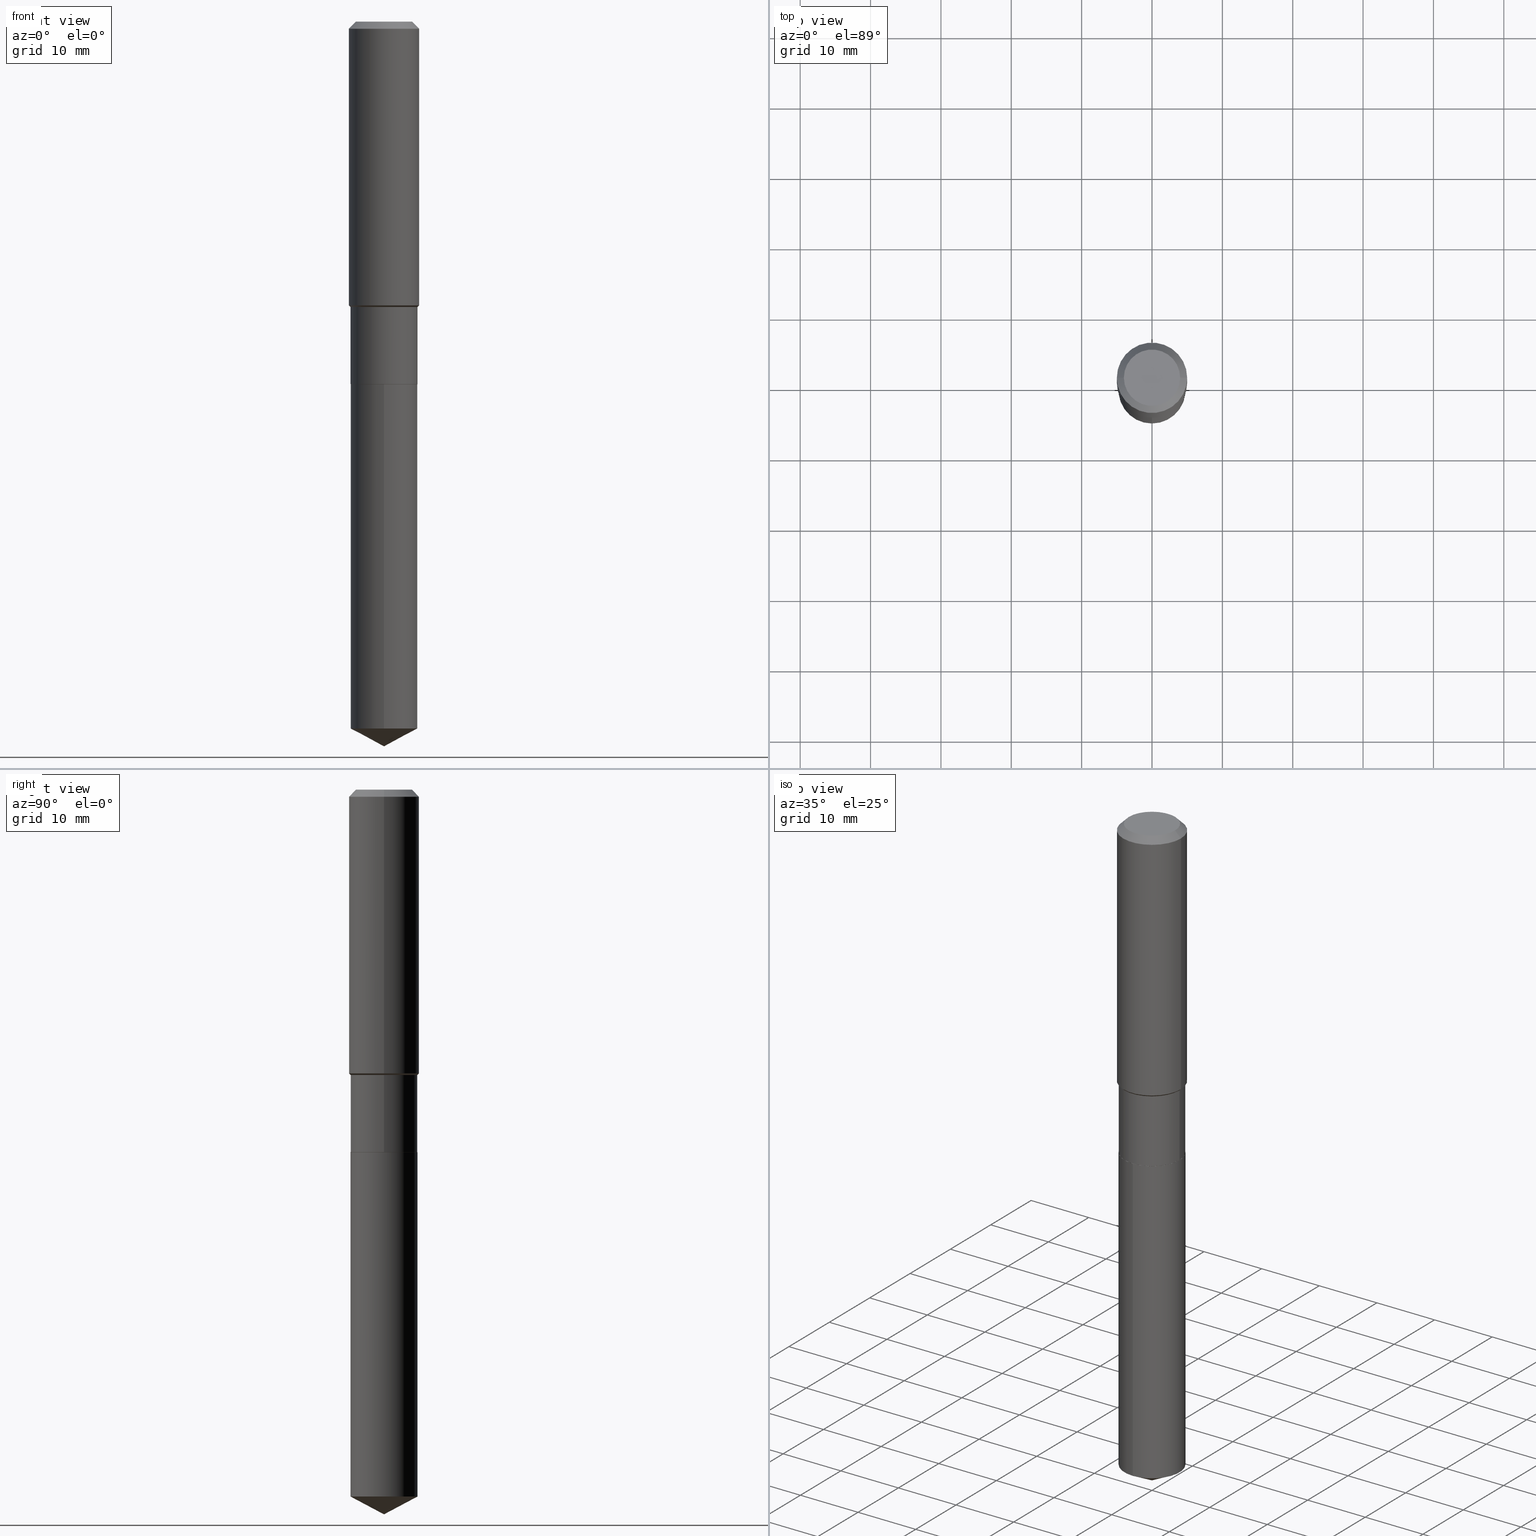
[diagram: canonical four-view strip — front | top / right | iso, engineering-drawing reading convention]
A machine part, canonical four-view strip (front | top / right | iso — engineering-drawing reading convention). The complete STEP part file that produces these views, byte-faithful:
ISO-10303-21;
HEADER;
FILE_DESCRIPTION (( 'STEP AP203' ),
    '1' );
FILE_NAME ('54821.STEP',
    '2024-04-24T15:58:58',
    ( '' ),
    ( '' ),
    'SwSTEP 2.0',
    'SolidWorks 2023',
    '' );
FILE_SCHEMA (( 'CONFIG_CONTROL_DESIGN' ));
ENDSEC;

DATA;
#1 = CARTESIAN_POINT ( 'NONE',  ( 4.959410738943456624E-29, -7.080724155173898521E-15, -2.027999999999999581 ) ) ;
#2 = DIRECTION ( 'NONE',  ( -2.445468806185136597E-29, 3.491481338843145583E-15, 1.000000000000000000 ) ) ;
#3 = DIRECTION ( 'NONE',  ( -6.982962677686265133E-15, -1.000000000000000000, 3.541896320645539569E-15 ) ) ;
#4 = CARTESIAN_POINT ( 'NONE',  ( 4.959410738943456063E-29, -7.080724155173897732E-15, -2.027999999999999581 ) ) ;
#5 = CONICAL_SURFACE ( 'NONE', #347, 0.1968500000000000250, 0.7853981633974447263 ) ;
#6 = EDGE_CURVE ( 'NONE', #209, #385, #403, .T. ) ;
#7 = FACE_OUTER_BOUND ( 'NONE', #217, .T. ) ;
#8 = CARTESIAN_POINT ( 'NONE',  ( -1.309305502066125507E-15, -0.1875000000000070777, -2.027999999999999137 ) ) ;
#9 = APPROVAL_DATE_TIME ( #359, #200 ) ;
#10 = CALENDAR_DATE ( 2024, 24, 4 ) ;
#11 = CIRCLE ( 'NONE', #473, 0.1968500000000002192 ) ;
#12 = CIRCLE ( 'NONE', #118, 0.1875000000000000278 ) ;
#13 = CARTESIAN_POINT ( 'NONE',  ( 2.890591265467325299E-29, -1.004339139108359101E-14, -2.027999999999999581 ) ) ;
#14 = DATE_TIME_ROLE ( 'creation_date' ) ;
#15 = FACE_OUTER_BOUND ( 'NONE', #459, .T. ) ;
#16 = CARTESIAN_POINT ( 'NONE',  ( 1.332267629550284681E-15, 0.1874999999999929501, -2.028000000000000025 ) ) ;
#17 = CARTESIAN_POINT ( 'NONE',  ( 3.904680042835807186E-29, -5.574848253730850378E-15, -1.596700000000000008 ) ) ;
#18 = PERSON_AND_ORGANIZATION ( #98, #489 ) ;
#19 = DIRECTION ( 'NONE',  ( -6.982962677686265922E-15, -1.000000000000000000, 2.913971193241880372E-15 ) ) ;
#20 = ADVANCED_FACE ( 'NONE', ( #68 ), #329, .T. ) ;
#21 = AXIS2_PLACEMENT_3D ( 'NONE', #164, #320, #472 ) ;
#22 = AXIS2_PLACEMENT_3D ( 'NONE', #456, #2, #117 ) ;
#23 = ORIENTED_EDGE ( 'NONE', *, *, #53, .F. ) ;
#24 = CARTESIAN_POINT ( 'NONE',  ( 0.000000000000000000, 0.000000000000000000, 0.000000000000000000 ) ) ;
#25 = CARTESIAN_POINT ( 'NONE',  ( 4.959410738943456624E-29, -7.080724155173898521E-15, -2.027999999999999581 ) ) ;
#26 = ORIENTED_EDGE ( 'NONE', *, *, #219, .T. ) ;
#27 = EDGE_CURVE ( 'NONE', #205, #251, #147, .T. ) ;
#28 = CARTESIAN_POINT ( 'NONE',  ( 0.000000000000000000, 0.000000000000000000, 0.000000000000000000 ) ) ;
#29 = ORIENTED_EDGE ( 'NONE', *, *, #61, .T. ) ;
#30 = EDGE_CURVE ( 'NONE', #337, #446, #36, .T. ) ;
#31 = ORIENTED_EDGE ( 'NONE', *, *, #74, .T. ) ;
#32 = VECTOR ( 'NONE', #220, 39.37007874015748143 ) ;
#33 = EDGE_LOOP ( 'NONE', ( #371, #128 ) ) ;
#34 = EDGE_CURVE ( 'NONE', #251, #441, #191, .T. ) ;
#35 = VERTEX_POINT ( 'NONE', #224 ) ;
#36 = CIRCLE ( 'NONE', #425, 0.1875000000000000278 ) ;
#37 = APPROVAL_PERSON_ORGANIZATION ( #161, #278, #431 ) ;
#38 = LINE ( 'NONE', #115, #264 ) ;
#39 = DIRECTION ( 'NONE',  ( 1.000000000000000000, -6.982962677686266711E-15, 4.876176775795935793E-29 ) ) ;
#40 = EDGE_CURVE ( 'NONE', #441, #251, #233, .T. ) ;
#41 = DIRECTION ( 'NONE',  ( 1.000000000000000000, -6.982962677686265922E-15, 4.876223630392693006E-29 ) ) ;
#42 = ADVANCED_FACE ( 'NONE', ( #102 ), #160, .F. ) ;
#43 = AXIS2_PLACEMENT_3D ( 'NONE', #169, #91, #396 ) ;
#44 = CARTESIAN_POINT ( 'NONE',  ( 9.672428586867749277E-29, -1.381007963808280120E-14, -3.955304481563473473 ) ) ;
#45 = VECTOR ( 'NONE', #154, 39.37007874015748143 ) ;
#46 = LINE ( 'NONE', #8, #45 ) ;
#47 = ORIENTED_EDGE ( 'NONE', *, *, #214, .T. ) ;
#48 = APPLICATION_PROTOCOL_DEFINITION ( 'international standard', 'config_control_design', 1994, #274 ) ;
#49 = DIRECTION ( 'NONE',  ( 1.000000000000000000, -6.982962677686264344E-15, 0.000000000000000000 ) ) ;
#50 = ADVANCED_FACE ( 'NONE', ( #364 ), #326, .T. ) ;
#51 = APPROVAL_DATE_TIME ( #395, #278 ) ;
#52 = PLANE ( 'NONE',  #71 ) ;
#53 = EDGE_CURVE ( 'NONE', #407, #441, #286, .T. ) ;
#54 = CC_DESIGN_PERSON_AND_ORGANIZATION_ASSIGNMENT ( #81, #352, ( #230 ) ) ;
#55 = DIRECTION ( 'NONE',  ( -2.445468806185136597E-29, 3.491481338843145583E-15, 1.000000000000000000 ) ) ;
#56 = ORIENTED_EDGE ( 'NONE', *, *, #245, .T. ) ;
#57 = LOCAL_TIME ( 11, 58, 58.00000000000000000, #129 ) ;
#58 = VERTEX_POINT ( 'NONE', #369 ) ;
#59 = CARTESIAN_POINT ( 'NONE',  ( 4.959410738943456063E-29, -7.080724155173897732E-15, -2.027999999999999581 ) ) ;
#60 = VERTEX_POINT ( 'NONE', #392 ) ;
#61 = EDGE_CURVE ( 'NONE', #205, #407, #11, .T. ) ;
#62 = VERTEX_POINT ( 'NONE', #277 ) ;
#63 = CC_DESIGN_DATE_AND_TIME_ASSIGNMENT ( #80, #313, ( #127 ) ) ;
#64 = DIRECTION ( 'NONE',  ( 1.000000000000000000, -6.982962677686265922E-15, 4.876223630392693006E-29 ) ) ;
#65 = EDGE_LOOP ( 'NONE', ( #439, #138, #26, #229 ) ) ;
#66 = CIRCLE ( 'NONE', #382, 0.1875000000000000278 ) ;
#67 = ORIENTED_EDGE ( 'NONE', *, *, #270, .F. ) ;
#68 = FACE_OUTER_BOUND ( 'NONE', #436, .T. ) ;
#69 = CARTESIAN_POINT ( 'NONE',  ( -0.1968500000000000250, 1.237136582792286225E-15, -0.03937000000000029365 ) ) ;
#70 = DIRECTION ( 'NONE',  ( 1.000000000000000000, -6.982962677686265922E-15, 0.000000000000000000 ) ) ;
#71 = AXIS2_PLACEMENT_3D ( 'NONE', #13, #246, #317 ) ;
#72 = VECTOR ( 'NONE', #342, 39.37007874015748854 ) ;
#73 = DIRECTION ( 'NONE',  ( 1.000000000000000000, -6.982962677686264344E-15, 0.000000000000000000 ) ) ;
#74 = EDGE_CURVE ( 'NONE', #242, #485, #199, .T. ) ;
#75 = CARTESIAN_POINT ( 'NONE',  ( 3.904680042835807186E-29, -5.574848253730850378E-15, -1.596700000000000008 ) ) ;
#76 = CARTESIAN_POINT ( 'NONE',  ( 9.627810689950954155E-31, -1.374596203102556547E-16, -0.03937000000000029365 ) ) ;
#77 = CARTESIAN_POINT ( 'NONE',  ( 0.1968500000000000250, -1.487948651171581601E-15, -0.03937000000000029365 ) ) ;
#78 = CARTESIAN_POINT ( 'NONE',  ( 9.627810689950954155E-31, -1.374596203102556547E-16, -0.03937000000000029365 ) ) ;
#79 = CONICAL_SURFACE ( 'NONE', #330, 0.1869999999999999996, 0.7853981633972775267 ) ;
#80 = DATE_AND_TIME ( #243, #216 ) ;
#81 = PERSON_AND_ORGANIZATION ( #98, #489 ) ;
#82 = CC_DESIGN_DATE_AND_TIME_ASSIGNMENT ( #158, #14, ( #230 ) ) ;
#83 = APPLICATION_PROTOCOL_DEFINITION ( 'international standard', 'config_control_design', 1994, #367 ) ;
#84 = DIRECTION ( 'NONE',  ( 1.000000000000000000, -6.982962677686266711E-15, 4.876176775795935793E-29 ) ) ;
#85 = AXIS2_PLACEMENT_3D ( 'NONE', #361, #430, #84 ) ;
#86 = ADVANCED_FACE ( 'NONE', ( #15 ), #116, .T. ) ;
#87 = DATE_AND_TIME ( #163, #57 ) ;
#88 = DIRECTION ( 'NONE',  ( -6.982962677686265922E-15, -1.000000000000000000, 2.913971193241880372E-15 ) ) ;
#89 = ORIENTED_EDGE ( 'NONE', *, *, #245, .F. ) ;
#90 = LENGTH_MEASURE_WITH_UNIT ( LENGTH_MEASURE( 0.02539999999999999897 ), #203 );
#91 = DIRECTION ( 'NONE',  ( -2.445393498022162713E-29, 3.491589184418798595E-15, 1.000000000000000000 ) ) ;
#92 = ORIENTED_EDGE ( 'NONE', *, *, #429, .F. ) ;
#93 = DIRECTION ( 'NONE',  ( -2.445468806185136877E-29, 3.491481338843145188E-15, 1.000000000000000000 ) ) ;
#94 = AXIS2_PLACEMENT_3D ( 'NONE', #454, #107, #332 ) ;
#95 = ORIENTED_EDGE ( 'NONE', *, *, #111, .F. ) ;
#96 = LINE ( 'NONE', #69, #366 ) ;
#97 = ORIENTED_EDGE ( 'NONE', *, *, #269, .F. ) ;
#98 = PERSON ( 'UNSPECIFIED', 'UNSPECIFIED', 'UNSPECIFIED', ('UNSPECIFIED'), ('UNSPECIFIED'), ('UNSPECIFIED') ) ;
#99 = EDGE_LOOP ( 'NONE', ( #327, #287 ) ) ;
#100 = DIRECTION ( 'NONE',  ( -2.445468806185136597E-29, 3.491481338843145583E-15, 1.000000000000000000 ) ) ;
#101 = AXIS2_PLACEMENT_3D ( 'NONE', #76, #297, #450 ) ;
#102 = FACE_OUTER_BOUND ( 'NONE', #173, .T. ) ;
#103 = VECTOR ( 'NONE', #303, 39.37007874015748143 ) ;
#104 = ADVANCED_FACE ( 'NONE', ( #120 ), #52, .F. ) ;
#105 = DIRECTION ( 'NONE',  ( 0.7071067811864267805, -2.468850131080992517E-15, 0.7071067811866682540 ) ) ;
#106 = ORIENTED_EDGE ( 'NONE', *, *, #27, .F. ) ;
#107 = DIRECTION ( 'NONE',  ( -2.445468806185136597E-29, 3.491481338843145583E-15, 1.000000000000000000 ) ) ;
#108 = CARTESIAN_POINT ( 'NONE',  ( -0.1968500000000001082, 1.398703375343757985E-15, -9.682923725166787881E-30 ) ) ;
#109 = CARTESIAN_POINT ( 'NONE',  ( 0.1968500000000000250, -1.512055823412797189E-15, -0.03937000000000029365 ) ) ;
#110 = AXIS2_PLACEMENT_3D ( 'NONE', #340, #380, #3 ) ;
#111 = EDGE_CURVE ( 'NONE', #337, #58, #358, .T. ) ;
#112 = LINE ( 'NONE', #77, #32 ) ;
#113 = CARTESIAN_POINT ( 'NONE',  ( 9.627810689950954155E-31, -1.374596203102556547E-16, -0.03937000000000029365 ) ) ;
#114 = DIRECTION ( 'NONE',  ( -0.7071067811864267805, 7.493145998869918709E-15, 0.7071067811866682540 ) ) ;
#115 = CARTESIAN_POINT ( 'NONE',  ( -0.1869999999999999996, -5.752009239302511571E-15, -2.027999999999999581 ) ) ;
#116 = CONICAL_SURFACE ( 'NONE', #43, 74.04434902938398011, 1.082104136236488934 ) ;
#117 = DIRECTION ( 'NONE',  ( 1.000000000000000000, -6.982962677686265133E-15, 0.000000000000000000 ) ) ;
#118 = AXIS2_PLACEMENT_3D ( 'NONE', #44, #149, #226 ) ;
#119 = DIRECTION ( 'NONE',  ( -6.165590087286842340E-15, -0.8829475928589273215, 0.4694715627858898066 ) ) ;
#120 = FACE_OUTER_BOUND ( 'NONE', #99, .T. ) ;
#121 = PERSON_AND_ORGANIZATION ( #98, #489 ) ;
#122 = DIRECTION ( 'NONE',  ( -2.445393498022162713E-29, 3.491589184418798595E-15, 1.000000000000000000 ) ) ;
#123 = CARTESIAN_POINT ( 'NONE',  ( -4.713871149261283817E-47, 6.730158695841841775E-33, 1.927594061857935365E-18 ) ) ;
#124 = CARTESIAN_POINT ( 'NONE',  ( 4.959410738943456063E-29, -7.080724155173897732E-15, -2.027999999999999581 ) ) ;
#125 = VECTOR ( 'NONE', #386, 39.37007874015748143 ) ;
#126 = DIRECTION ( 'NONE',  ( -1.000000000000000000, 6.982962677686265922E-15, -4.876176775795935793E-29 ) ) ;
#127 = SECURITY_CLASSIFICATION ( '', '', #468 ) ;
#128 = ORIENTED_EDGE ( 'NONE', *, *, #194, .T. ) ;
#129 = COORDINATED_UNIVERSAL_TIME_OFFSET ( 5, 0, .BEHIND. ) ;
#130 = DIRECTION ( 'NONE',  ( -2.445468806185136877E-29, 3.491481338843145188E-15, 1.000000000000000000 ) ) ;
#131 = ORIENTED_EDGE ( 'NONE', *, *, #323, .T. ) ;
#132 = EDGE_CURVE ( 'NONE', #385, #209, #488, .T. ) ;
#133 = CC_DESIGN_PERSON_AND_ORGANIZATION_ASSIGNMENT ( #394, #280, ( #249 ) ) ;
#134 = CARTESIAN_POINT ( 'NONE',  ( 0.000000000000000000, 0.000000000000000000, 0.000000000000000000 ) ) ;
#135 = AXIS2_PLACEMENT_3D ( 'NONE', #283, #435, #88 ) ;
#136 = ORIENTED_EDGE ( 'NONE', *, *, #194, .F. ) ;
#137 = DIRECTION ( 'NONE',  ( 1.000000000000000000, -6.982962677686264344E-15, 0.000000000000000000 ) ) ;
#138 = ORIENTED_EDGE ( 'NONE', *, *, #375, .F. ) ;
#139 = ADVANCED_FACE ( 'NONE', ( #314 ), #279, .F. ) ;
#140 = APPROVAL ( #357, 'UNSPECIFIED' ) ;
#141 = ORIENTED_EDGE ( 'NONE', *, *, #452, .F. ) ;
#142 = DIRECTION ( 'NONE',  ( -2.445468806185136597E-29, 3.491481338843145583E-15, 1.000000000000000000 ) ) ;
#143 = ORIENTED_EDGE ( 'NONE', *, *, #27, .T. ) ;
#144 = CIRCLE ( 'NONE', #177, 0.1875000000000000278 ) ;
#145 = ORIENTED_EDGE ( 'NONE', *, *, #170, .T. ) ;
#146 = DIRECTION ( 'NONE',  ( 2.445468806185136597E-29, -3.491481338843145583E-15, -1.000000000000000000 ) ) ;
#147 = LINE ( 'NONE', #108, #248 ) ;
#148 = ADVANCED_FACE ( 'NONE', ( #289 ), #172, .T. ) ;
#149 = DIRECTION ( 'NONE',  ( -2.445393498022162713E-29, 3.491589184418798595E-15, 1.000000000000000000 ) ) ;
#150 = DIRECTION ( 'NONE',  ( -2.445468806185136877E-29, 3.491481338843145188E-15, 1.000000000000000000 ) ) ;
#151 = CARTESIAN_POINT ( 'NONE',  ( -0.1875000000000000278, -4.994645704567475454E-15, -2.027499999999999414 ) ) ;
#152 = DIRECTION ( 'NONE',  ( 2.445468806185136597E-29, -3.491481338843145583E-15, -1.000000000000000000 ) ) ;
#153 = COORDINATED_UNIVERSAL_TIME_OFFSET ( 5, 0, .BEHIND. ) ;
#154 = DIRECTION ( 'NONE',  ( -2.445393498022162713E-29, 3.491589184418798595E-15, 1.000000000000000000 ) ) ;
#155 = ORIENTED_EDGE ( 'NONE', *, *, #111, .T. ) ;
#156 = CLOSED_SHELL ( 'NONE', ( #50, #20, #86, #447, #139 ) ) ;
#157 = APPROVAL_ROLE ( '' ) ;
#158 = DATE_AND_TIME ( #10, #465 ) ;
#159 = AXIS2_PLACEMENT_3D ( 'NONE', #301, #142, #137 ) ;
#160 = PLANE ( 'NONE',  #457 ) ;
#161 = PERSON_AND_ORGANIZATION ( #98, #489 ) ;
#162 = CARTESIAN_POINT ( 'NONE',  ( 0.1968500000000001082, -1.374596203102542397E-15, 9.598753983154305062E-30 ) ) ;
#163 = CALENDAR_DATE ( 2024, 24, 4 ) ;
#164 = CARTESIAN_POINT ( 'NONE',  ( 3.904680042835807186E-29, -5.574848253730850378E-15, -1.596700000000000008 ) ) ;
#165 = SHAPE_DEFINITION_REPRESENTATION ( #445, #302 ) ;
#166 = DIRECTION ( 'NONE',  ( 0.000000000000000000, 0.000000000000000000, 1.000000000000000000 ) ) ;
#167 = CIRCLE ( 'NONE', #135, 0.1875000000000000278 ) ;
#168 = CONICAL_SURFACE ( 'NONE', #159, 0.1874999999999999445, 0.7853981633974482790 ) ;
#169 = CARTESIAN_POINT ( 'NONE',  ( -8.635911120836730064E-28, 1.233059656868595441E-13, 35.31507874015748172 ) ) ;
#170 = EDGE_CURVE ( 'NONE', #171, #58, #388, .T. ) ;
#171 = VERTEX_POINT ( 'NONE', #470 ) ;
#172 = CYLINDRICAL_SURFACE ( 'NONE', #85, 0.1968500000000001082 ) ;
#173 = EDGE_LOOP ( 'NONE', ( #179, #47 ) ) ;
#174 = FACE_OUTER_BOUND ( 'NONE', #448, .T. ) ;
#175 = EDGE_LOOP ( 'NONE', ( #376, #374, #258, #136 ) ) ;
#176 = AXIS2_PLACEMENT_3D ( 'NONE', #113, #416, #70 ) ;
#177 = AXIS2_PLACEMENT_3D ( 'NONE', #391, #276, #469 ) ;
#178 = CC_DESIGN_SECURITY_CLASSIFICATION ( #127, ( #249 ) ) ;
#179 = ORIENTED_EDGE ( 'NONE', *, *, #375, .T. ) ;
#180 = DIRECTION ( 'NONE',  ( -2.445468806185136597E-29, 3.491481338843145583E-15, 1.000000000000000000 ) ) ;
#181 = EDGE_CURVE ( 'NONE', #58, #171, #464, .T. ) ;
#182 = ORIENTED_EDGE ( 'NONE', *, *, #53, .T. ) ;
#183 = AXIS2_PLACEMENT_3D ( 'NONE', #25, #55, #202 ) ;
#184 = AXIS2_PLACEMENT_3D ( 'NONE', #28, #100, #296 ) ;
#185 = DIRECTION ( 'NONE',  ( 1.000000000000000000, -6.982962677686265133E-15, 0.000000000000000000 ) ) ;
#186 = ORIENTED_EDGE ( 'NONE', *, *, #355, .F. ) ;
#187 = CC_DESIGN_PERSON_AND_ORGANIZATION_ASSIGNMENT ( #18, #427, ( #249 ) ) ;
#188 = DIRECTION ( 'NONE',  ( -2.445393498022162713E-29, 3.491589184418798595E-15, 1.000000000000000000 ) ) ;
#189 = ORIENTED_EDGE ( 'NONE', *, *, #389, .F. ) ;
#190 = DIRECTION ( 'NONE',  ( 1.000000000000000000, -6.982962677686266711E-15, 0.000000000000000000 ) ) ;
#191 = CIRCLE ( 'NONE', #176, 0.1968500000000000250 ) ;
#192 = APPROVAL_PERSON_ORGANIZATION ( #198, #140, #235 ) ;
#193 = CARTESIAN_POINT ( 'NONE',  ( 9.916378762824038834E-29, -1.415795672116337894E-14, -4.054999999999999716 ) ) ;
#194 = EDGE_CURVE ( 'NONE', #485, #477, #167, .T. ) ;
#195 = DIRECTION ( 'NONE',  ( -1.000000000000000000, 6.982962677686265922E-15, 0.000000000000000000 ) ) ;
#196 = CARTESIAN_POINT ( 'NONE',  ( 4.958188004540363822E-29, -7.078978414504476228E-15, -2.027499999999999414 ) ) ;
#197 = AXIS2_PLACEMENT_3D ( 'NONE', #308, #268, #41 ) ;
#198 = PERSON_AND_ORGANIZATION ( #98, #489 ) ;
#199 = LINE ( 'NONE', #476, #335 ) ;
#200 = APPROVAL ( #206, 'UNSPECIFIED' ) ;
#201 =( NAMED_UNIT ( * ) PLANE_ANGLE_UNIT ( ) SI_UNIT ( $, .RADIAN. ) );
#202 = DIRECTION ( 'NONE',  ( 1.000000000000000000, -6.982962677686265133E-15, 0.000000000000000000 ) ) ;
#203 =( LENGTH_UNIT ( ) NAMED_UNIT ( * ) SI_UNIT ( $, .METRE. ) );
#204 = DIRECTION ( 'NONE',  ( 2.438088387897960049E-29, -3.491481338843145188E-15, -1.000000000000000000 ) ) ;
#205 = VERTEX_POINT ( 'NONE', #398 ) ;
#206 = APPROVAL_STATUS ( 'not_yet_approved' ) ;
#207 = FACE_OUTER_BOUND ( 'NONE', #175, .T. ) ;
#208 = VECTOR ( 'NONE', #130, 39.37007874015748143 ) ;
#209 = VERTEX_POINT ( 'NONE', #413 ) ;
#210 = ADVANCED_FACE ( 'NONE', ( #486 ), #168, .T. ) ;
#211 = CARTESIAN_POINT ( 'NONE',  ( -0.1874999999999999722, 1.332267629550187651E-15, -9.223003294227946589E-30 ) ) ;
#212 = ORIENTED_EDGE ( 'NONE', *, *, #214, .F. ) ;
#213 = ORIENTED_EDGE ( 'NONE', *, *, #373, .T. ) ;
#214 = EDGE_CURVE ( 'NONE', #62, #60, #291, .T. ) ;
#215 = MANIFOLD_SOLID_BREP ( 'Body-Move/Copy2[2]', #305 ) ;
#216 = LOCAL_TIME ( 11, 58, 58.00000000000000000, #153 ) ;
#217 = EDGE_LOOP ( 'NONE', ( #189, #265, #56, #318 ) ) ;
#218 = MANIFOLD_SOLID_BREP ( 'Body-Move/Copy2[1]', #156 ) ;
#219 = EDGE_CURVE ( 'NONE', #60, #251, #96, .T. ) ;
#220 = DIRECTION ( 'NONE',  ( 0.7071067811865450192, -7.319954787623246579E-15, -0.7071067811865500152 ) ) ;
#221 = AXIS2_PLACEMENT_3D ( 'NONE', #59, #440, #19 ) ;
#222 = EDGE_CURVE ( 'NONE', #407, #205, #442, .T. ) ;
#223 = CIRCLE ( 'NONE', #306, 0.1875000000000000278 ) ;
#224 = CARTESIAN_POINT ( 'NONE',  ( 9.916070634479869073E-29, -1.415839414281822781E-14, -4.054999999999999716 ) ) ;
#225 = CONICAL_SURFACE ( 'NONE', #311, 0.1874999999999999445, 0.7853981633974482790 ) ;
#226 = DIRECTION ( 'NONE',  ( -6.982962677686265922E-15, -1.000000000000000000, 2.913971193241880372E-15 ) ) ;
#227 = ORIENTED_EDGE ( 'NONE', *, *, #389, .T. ) ;
#228 = CARTESIAN_POINT ( 'NONE',  ( 0.1875000000000000278, -8.388283916570652025E-15, -2.027499999999999414 ) ) ;
#229 = ORIENTED_EDGE ( 'NONE', *, *, #34, .T. ) ;
#230 = PRODUCT_DEFINITION ( 'UNKNOWN', '', #249, #383 ) ;
#231 = DIRECTION ( 'NONE',  ( 1.000000000000000000, -6.982962677686266711E-15, 4.876176775795935793E-29 ) ) ;
#232 = ADVANCED_FACE ( 'NONE', ( #372 ), #484, .T. ) ;
#233 = CIRCLE ( 'NONE', #101, 0.1968500000000000250 ) ;
#234 = LINE ( 'NONE', #458, #72 ) ;
#235 = APPROVAL_ROLE ( '' ) ;
#236 = DIRECTION ( 'NONE',  ( -2.445468806185136597E-29, 3.491481338843145583E-15, 1.000000000000000000 ) ) ;
#237 = VECTOR ( 'NONE', #93, 39.37007874015748143 ) ;
#238 = AXIS2_PLACEMENT_3D ( 'NONE', #377, #180, #64 ) ;
#239 = COORDINATED_UNIVERSAL_TIME_OFFSET ( 5, 0, .BEHIND. ) ;
#240 = DIRECTION ( 'NONE',  ( -2.445393498022162713E-29, 3.491589184418798595E-15, 1.000000000000000000 ) ) ;
#241 = COORDINATED_UNIVERSAL_TIME_OFFSET ( 5, 0, .BEHIND. ) ;
#242 = VERTEX_POINT ( 'NONE', #449 ) ;
#243 = CALENDAR_DATE ( 2024, 24, 4 ) ;
#244 = LINE ( 'NONE', #363, #257 ) ;
#245 = EDGE_CURVE ( 'NONE', #209, #446, #255, .T. ) ;
#246 = DIRECTION ( 'NONE',  ( -2.438088387897960049E-29, 3.491481338843145188E-15, 1.000000000000000000 ) ) ;
#247 = EDGE_LOOP ( 'NONE', ( #294, #31, #325, #186 ) ) ;
#248 = VECTOR ( 'NONE', #150, 39.37007874015748143 ) ;
#249 = PRODUCT_DEFINITION_FORMATION_WITH_SPECIFIED_SOURCE ( 'ANY', '', #370, .NOT_KNOWN. ) ;
#250 = DIRECTION ( 'NONE',  ( 1.000000000000000000, -6.982962677686265922E-15, 0.000000000000000000 ) ) ;
#251 = VERTEX_POINT ( 'NONE', #259 ) ;
#252 = ORIENTED_EDGE ( 'NONE', *, *, #479, .F. ) ;
#253 = DIMENSIONAL_EXPONENTS ( 1.000000000000000000, 0.000000000000000000, 0.000000000000000000, 0.000000000000000000, 0.000000000000000000, 0.000000000000000000, 0.000000000000000000 ) ;
#254 = EDGE_LOOP ( 'NONE', ( #284, #227, #331, #89 ) ) ;
#255 = LINE ( 'NONE', #444, #336 ) ;
#256 = AXIS2_PLACEMENT_3D ( 'NONE', #400, #405, #466 ) ;
#257 = VECTOR ( 'NONE', #119, 39.37007874015748143 ) ;
#258 = ORIENTED_EDGE ( 'NONE', *, *, #355, .T. ) ;
#259 = CARTESIAN_POINT ( 'NONE',  ( -0.1968500000000000250, -1.441127886417702753E-15, -0.03937000000000029365 ) ) ;
#260 = ORIENTED_EDGE ( 'NONE', *, *, #270, .T. ) ;
#261 = DIRECTION ( 'NONE',  ( -2.445468806185136597E-29, 3.491481338843145583E-15, 1.000000000000000000 ) ) ;
#262 = ADVANCED_FACE ( 'NONE', ( #174 ), #481, .T. ) ;
#263 = LINE ( 'NONE', #417, #125 ) ;
#264 = VECTOR ( 'NONE', #114, 39.37007874015748143 ) ;
#265 = ORIENTED_EDGE ( 'NONE', *, *, #132, .T. ) ;
#266 = FACE_OUTER_BOUND ( 'NONE', #65, .T. ) ;
#267 = DIRECTION ( 'NONE',  ( 1.000000000000000000, -6.982962677686265133E-15, 0.000000000000000000 ) ) ;
#268 = DIRECTION ( 'NONE',  ( -2.445468806185136597E-29, 3.491481338843145583E-15, 1.000000000000000000 ) ) ;
#269 = EDGE_CURVE ( 'NONE', #58, #205, #234, .T. ) ;
#270 = EDGE_CURVE ( 'NONE', #446, #171, #263, .T. ) ;
#271 = FACE_OUTER_BOUND ( 'NONE', #254, .T. ) ;
#272 = AXIS2_PLACEMENT_3D ( 'NONE', #24, #166, #319 ) ;
#273 = CARTESIAN_POINT ( 'NONE',  ( 0.1968500000000002192, -6.916799106315208686E-15, -1.587349999999999595 ) ) ;
#274 = APPLICATION_CONTEXT ( 'configuration controlled 3d designs of mechanical parts and assemblies' ) ;
#275 = PERSON_AND_ORGANIZATION_ROLE ( 'classification_officer' ) ;
#276 = DIRECTION ( 'NONE',  ( -2.445393498022162713E-29, 3.491589184418798595E-15, 1.000000000000000000 ) ) ;
#277 = CARTESIAN_POINT ( 'NONE',  ( 0.1574800000000000089, -1.284169937930321189E-15, 3.855188123724205385E-18 ) ) ;
#278 = APPROVAL ( #316, 'UNSPECIFIED' ) ;
#279 = PLANE ( 'NONE',  #256 ) ;
#280 = PERSON_AND_ORGANIZATION_ROLE ( 'creator' ) ;
#281 =( GEOMETRIC_REPRESENTATION_CONTEXT ( 3 ) GLOBAL_UNCERTAINTY_ASSIGNED_CONTEXT ( ( #415 ) ) GLOBAL_UNIT_ASSIGNED_CONTEXT ( ( #434, #201, #322 ) ) REPRESENTATION_CONTEXT ( 'NONE', 'WORKASPACE' ) );
#282 = CARTESIAN_POINT ( 'NONE',  ( -1.309305502066077978E-15, -0.1875000000000137668, -3.955304481563473029 ) ) ;
#283 = CARTESIAN_POINT ( 'NONE',  ( 4.959410738943456063E-29, -7.080724155173897732E-15, -2.027999999999999581 ) ) ;
#284 = ORIENTED_EDGE ( 'NONE', *, *, #6, .T. ) ;
#285 = CYLINDRICAL_SURFACE ( 'NONE', #426, 0.1875000000000000278 ) ;
#286 = LINE ( 'NONE', #162, #237 ) ;
#287 = ORIENTED_EDGE ( 'NONE', *, *, #132, .F. ) ;
#288 = APPROVAL_DATE_TIME ( #87, #140 ) ;
#289 = FACE_OUTER_BOUND ( 'NONE', #399, .T. ) ;
#290 = ORIENTED_EDGE ( 'NONE', *, *, #222, .T. ) ;
#291 = CIRCLE ( 'NONE', #238, 0.1574800000000000089 ) ;
#292 = APPROVAL_PERSON_ORGANIZATION ( #121, #200, #157 ) ;
#293 = DIRECTION ( 'NONE',  ( -2.445468806185136597E-29, 3.491481338843145583E-15, 1.000000000000000000 ) ) ;
#294 = ORIENTED_EDGE ( 'NONE', *, *, #479, .T. ) ;
#295 = ORIENTED_EDGE ( 'NONE', *, *, #181, .T. ) ;
#296 = DIRECTION ( 'NONE',  ( 1.000000000000000000, -6.982962677686266711E-15, 4.876176775795935793E-29 ) ) ;
#297 = DIRECTION ( 'NONE',  ( -2.445468806185136597E-29, 3.491481338843145583E-15, 1.000000000000000000 ) ) ;
#298 = DIRECTION ( 'NONE',  ( -0.7071067811865450192, 2.468850131082230634E-15, -0.7071067811865500152 ) ) ;
#299 = AXIS2_PLACEMENT_3D ( 'NONE', #304, #428, #231 ) ;
#300 = EDGE_LOOP ( 'NONE', ( #97, #295, #213, #422 ) ) ;
#301 = CARTESIAN_POINT ( 'NONE',  ( 3.904680042835807186E-29, -5.574848253730850378E-15, -1.596700000000000008 ) ) ;
#302 = ADVANCED_BREP_SHAPE_REPRESENTATION ( '54821', ( #218, #215, #272 ), #281 ) ;
#303 = DIRECTION ( 'NONE',  ( 6.273719981627773176E-15, 0.8829475928589307632, 0.4694715627858835894 ) ) ;
#304 = CARTESIAN_POINT ( 'NONE',  ( 0.000000000000000000, 0.000000000000000000, 0.000000000000000000 ) ) ;
#305 = CLOSED_SHELL ( 'NONE', ( #401, #420, #232, #210, #411, #262, #315, #148, #350, #42, #104, #338 ) ) ;
#306 = AXIS2_PLACEMENT_3D ( 'NONE', #4, #188, #463 ) ;
#307 = LOCAL_TIME ( 11, 58, 58.00000000000000000, #351 ) ;
#308 = CARTESIAN_POINT ( 'NONE',  ( -9.427742298522567634E-47, 1.346031739168368355E-32, 3.855188123715870730E-18 ) ) ;
#309 = DIRECTION ( 'NONE',  ( 0.7071067811865474617, -2.468850131082256666E-15, 0.7071067811865474617 ) ) ;
#310 = CARTESIAN_POINT ( 'NONE',  ( 4.959410738943456624E-29, -7.080724155173898521E-15, -2.027999999999999581 ) ) ;
#311 = AXIS2_PLACEMENT_3D ( 'NONE', #75, #348, #73 ) ;
#312 = ORIENTED_EDGE ( 'NONE', *, *, #269, .T. ) ;
#313 = DATE_TIME_ROLE ( 'classification_date' ) ;
#314 = FACE_OUTER_BOUND ( 'NONE', #33, .T. ) ;
#315 = ADVANCED_FACE ( 'NONE', ( #423 ), #225, .T. ) ;
#316 = APPROVAL_STATUS ( 'not_yet_approved' ) ;
#317 = DIRECTION ( 'NONE',  ( 1.000000000000000000, -6.982962677686265922E-15, 4.876176775795935793E-29 ) ) ;
#318 = ORIENTED_EDGE ( 'NONE', *, *, #30, .F. ) ;
#319 = DIRECTION ( 'NONE',  ( 1.000000000000000000, 0.000000000000000000, 0.000000000000000000 ) ) ;
#320 = DIRECTION ( 'NONE',  ( -2.445468806185136597E-29, 3.491481338843145583E-15, 1.000000000000000000 ) ) ;
#321 = AXIS2_PLACEMENT_3D ( 'NONE', #349, #152, #195 ) ;
#322 =( NAMED_UNIT ( * ) SI_UNIT ( $, .STERADIAN. ) SOLID_ANGLE_UNIT ( ) );
#323 = EDGE_CURVE ( 'NONE', #62, #441, #112, .T. ) ;
#324 = CARTESIAN_POINT ( 'NONE',  ( 3.881814909497976059E-29, -5.542202903212666289E-15, -1.587349999999999595 ) ) ;
#325 = ORIENTED_EDGE ( 'NONE', *, *, #344, .F. ) ;
#326 = CYLINDRICAL_SURFACE ( 'NONE', #221, 0.1875000000000000278 ) ;
#327 = ORIENTED_EDGE ( 'NONE', *, *, #6, .F. ) ;
#328 = ORIENTED_EDGE ( 'NONE', *, *, #452, .T. ) ;
#329 = CONICAL_SURFACE ( 'NONE', #110, 74.04434902938398011, 1.082104136236488934 ) ;
#330 = AXIS2_PLACEMENT_3D ( 'NONE', #310, #490, #185 ) ;
#331 = ORIENTED_EDGE ( 'NONE', *, *, #341, .F. ) ;
#332 = DIRECTION ( 'NONE',  ( 1.000000000000000000, -6.982962677686265922E-15, 0.000000000000000000 ) ) ;
#333 = ORIENTED_EDGE ( 'NONE', *, *, #34, .F. ) ;
#334 = ORIENTED_EDGE ( 'NONE', *, *, #181, .F. ) ;
#335 = VECTOR ( 'NONE', #240, 39.37007874015748143 ) ;
#336 = VECTOR ( 'NONE', #105, 39.37007874015748143 ) ;
#337 = VERTEX_POINT ( 'NONE', #151 ) ;
#338 = ADVANCED_FACE ( 'NONE', ( #7 ), #393, .T. ) ;
#339 = FACE_OUTER_BOUND ( 'NONE', #453, .T. ) ;
#340 = CARTESIAN_POINT ( 'NONE',  ( -8.635911120836730064E-28, 1.233059656868595441E-13, 35.31507874015748172 ) ) ;
#341 = EDGE_CURVE ( 'NONE', #446, #337, #66, .T. ) ;
#342 = DIRECTION ( 'NONE',  ( -0.7071067811865474617, 7.493145998870352582E-15, 0.7071067811865474617 ) ) ;
#343 = ORIENTED_EDGE ( 'NONE', *, *, #373, .F. ) ;
#344 = EDGE_CURVE ( 'NONE', #477, #485, #223, .T. ) ;
#345 = FACE_OUTER_BOUND ( 'NONE', #402, .T. ) ;
#346 = PRODUCT_RELATED_PRODUCT_CATEGORY ( 'detail', '', ( #370 ) ) ;
#347 = AXIS2_PLACEMENT_3D ( 'NONE', #78, #146, #421 ) ;
#348 = DIRECTION ( 'NONE',  ( -2.445468806185136597E-29, 3.491481338843145583E-15, 1.000000000000000000 ) ) ;
#349 = CARTESIAN_POINT ( 'NONE',  ( 9.627810689950954155E-31, -1.374596203102556547E-16, -0.03937000000000029365 ) ) ;
#350 = ADVANCED_FACE ( 'NONE', ( #266 ), #418, .T. ) ;
#351 = COORDINATED_UNIVERSAL_TIME_OFFSET ( 5, 0, .BEHIND. ) ;
#352 = PERSON_AND_ORGANIZATION_ROLE ( 'creator' ) ;
#353 = DIRECTION ( 'NONE',  ( 1.000000000000000000, -6.982962677686266711E-15, 0.000000000000000000 ) ) ;
#354 = AXIS2_PLACEMENT_3D ( 'NONE', #17, #236, #49 ) ;
#355 = EDGE_CURVE ( 'NONE', #467, #477, #46, .T. ) ;
#356 = VECTOR ( 'NONE', #309, 39.37007874015748854 ) ;
#357 = APPROVAL_STATUS ( 'not_yet_approved' ) ;
#358 = LINE ( 'NONE', #211, #208 ) ;
#359 = DATE_AND_TIME ( #462, #307 ) ;
#360 = DIRECTION ( 'NONE',  ( -6.982962677686265922E-15, -1.000000000000000000, 2.913971193241880372E-15 ) ) ;
#361 = CARTESIAN_POINT ( 'NONE',  ( 0.000000000000000000, 0.000000000000000000, 0.000000000000000000 ) ) ;
#362 = EDGE_CURVE ( 'NONE', #242, #467, #12, .T. ) ;
#363 = CARTESIAN_POINT ( 'NONE',  ( 9.916070634479869073E-29, -1.415839414281822781E-14, -4.054999999999999716 ) ) ;
#364 = FACE_OUTER_BOUND ( 'NONE', #247, .T. ) ;
#365 = ORIENTED_EDGE ( 'NONE', *, *, #40, .T. ) ;
#366 = VECTOR ( 'NONE', #298, 39.37007874015748143 ) ;
#367 = APPLICATION_CONTEXT ( 'configuration controlled 3d designs of mechanical parts and assemblies' ) ;
#368 = LOCAL_TIME ( 11, 58, 58.00000000000000000, #239 ) ;
#369 = CARTESIAN_POINT ( 'NONE',  ( -0.1874999999999999445, -4.994645704567475454E-15, -1.596700000000000008 ) ) ;
#370 = PRODUCT ( '54821', '54821', '', ( #471 ) ) ;
#371 = ORIENTED_EDGE ( 'NONE', *, *, #344, .T. ) ;
#372 = FACE_OUTER_BOUND ( 'NONE', #480, .T. ) ;
#373 = EDGE_CURVE ( 'NONE', #171, #407, #381, .T. ) ;
#374 = ORIENTED_EDGE ( 'NONE', *, *, #362, .T. ) ;
#375 = EDGE_CURVE ( 'NONE', #60, #62, #410, .T. ) ;
#376 = ORIENTED_EDGE ( 'NONE', *, *, #74, .F. ) ;
#377 = CARTESIAN_POINT ( 'NONE',  ( -9.427742298522567634E-47, 1.346031739168368355E-32, 3.855188123715870730E-18 ) ) ;
#378 = ORIENTED_EDGE ( 'NONE', *, *, #429, .T. ) ;
#379 = ORIENTED_EDGE ( 'NONE', *, *, #40, .F. ) ;
#380 = DIRECTION ( 'NONE',  ( -2.445393498022162713E-29, 3.491589184418798595E-15, 1.000000000000000000 ) ) ;
#381 = LINE ( 'NONE', #460, #356 ) ;
#382 = AXIS2_PLACEMENT_3D ( 'NONE', #384, #424, #190 ) ;
#383 = DESIGN_CONTEXT ( 'detailed design', #367, 'design' ) ;
#384 = CARTESIAN_POINT ( 'NONE',  ( 4.958188004540363822E-29, -7.078978414504476228E-15, -2.027499999999999414 ) ) ;
#385 = VERTEX_POINT ( 'NONE', #461 ) ;
#386 = DIRECTION ( 'NONE',  ( -2.445468806185136877E-29, 3.491481338843145188E-15, 1.000000000000000000 ) ) ;
#387 = LINE ( 'NONE', #193, #103 ) ;
#388 = CIRCLE ( 'NONE', #354, 0.1874999999999999445 ) ;
#389 = EDGE_CURVE ( 'NONE', #385, #337, #38, .T. ) ;
#390 = CYLINDRICAL_SURFACE ( 'NONE', #299, 0.1874999999999999722 ) ;
#391 = CARTESIAN_POINT ( 'NONE',  ( 9.672428586867749277E-29, -1.381007963808280120E-14, -3.955304481563473473 ) ) ;
#392 = CARTESIAN_POINT ( 'NONE',  ( -0.1574800000000000089, 1.168406772637159618E-15, 3.855188123707939751E-18 ) ) ;
#393 = CONICAL_SURFACE ( 'NONE', #22, 0.1869999999999999996, 0.7853981633972775267 ) ;
#394 = PERSON_AND_ORGANIZATION ( #98, #489 ) ;
#395 = DATE_AND_TIME ( #397, #368 ) ;
#396 = DIRECTION ( 'NONE',  ( -6.982962677686265133E-15, -1.000000000000000000, 3.541896320645539569E-15 ) ) ;
#397 = CALENDAR_DATE ( 2024, 24, 4 ) ;
#398 = CARTESIAN_POINT ( 'NONE',  ( -0.1968500000000002192, -4.143499527868906923E-15, -1.587349999999999595 ) ) ;
#399 = EDGE_LOOP ( 'NONE', ( #106, #29, #182, #333 ) ) ;
#400 = CARTESIAN_POINT ( 'NONE',  ( 4.959410738943456063E-29, -7.080724155173897732E-15, -2.027999999999999581 ) ) ;
#401 = ADVANCED_FACE ( 'NONE', ( #271 ), #79, .T. ) ;
#402 = EDGE_LOOP ( 'NONE', ( #483, #155, #487, #67 ) ) ;
#403 = CIRCLE ( 'NONE', #432, 0.1869999999999999996 ) ;
#404 = CC_DESIGN_APPROVAL ( #140, ( #230 ) ) ;
#405 = DIRECTION ( 'NONE',  ( 2.445393498022162433E-29, -3.491589184418798595E-15, -1.000000000000000000 ) ) ;
#406 = ORIENTED_EDGE ( 'NONE', *, *, #222, .F. ) ;
#407 = VERTEX_POINT ( 'NONE', #273 ) ;
#408 = ORIENTED_EDGE ( 'NONE', *, *, #30, .T. ) ;
#409 = CC_DESIGN_PERSON_AND_ORGANIZATION_ASSIGNMENT ( #475, #478, ( #370 ) ) ;
#410 = CIRCLE ( 'NONE', #197, 0.1574800000000000089 ) ;
#411 = ADVANCED_FACE ( 'NONE', ( #345 ), #390, .T. ) ;
#412 = ORIENTED_EDGE ( 'NONE', *, *, #219, .F. ) ;
#413 = CARTESIAN_POINT ( 'NONE',  ( 0.1869999999999999996, -8.386538175901229733E-15, -2.027999999999999581 ) ) ;
#414 = DIRECTION ( 'NONE',  ( -2.445468806185136597E-29, 3.491481338843145583E-15, 1.000000000000000000 ) ) ;
#415 = UNCERTAINTY_MEASURE_WITH_UNIT (LENGTH_MEASURE( 1.000000000000000082E-05 ), #434, 'distance_accuracy_value', 'NONE');
#416 = DIRECTION ( 'NONE',  ( -2.445468806185136597E-29, 3.491481338843145583E-15, 1.000000000000000000 ) ) ;
#417 = CARTESIAN_POINT ( 'NONE',  ( 0.1874999999999999722, -1.309305502066174811E-15, 9.142831454617378210E-30 ) ) ;
#418 = CONICAL_SURFACE ( 'NONE', #321, 0.1968500000000000250, 0.7853981633974447263 ) ;
#419 = CC_DESIGN_PERSON_AND_ORGANIZATION_ASSIGNMENT ( #433, #275, ( #127 ) ) ;
#420 = ADVANCED_FACE ( 'NONE', ( #339 ), #5, .T. ) ;
#421 = DIRECTION ( 'NONE',  ( -1.000000000000000000, 6.982962677686265922E-15, 0.000000000000000000 ) ) ;
#422 = ORIENTED_EDGE ( 'NONE', *, *, #61, .F. ) ;
#423 = FACE_OUTER_BOUND ( 'NONE', #300, .T. ) ;
#424 = DIRECTION ( 'NONE',  ( -2.445468806185136597E-29, 3.491481338843145583E-15, 1.000000000000000000 ) ) ;
#425 = AXIS2_PLACEMENT_3D ( 'NONE', #196, #261, #353 ) ;
#426 = AXIS2_PLACEMENT_3D ( 'NONE', #124, #122, #360 ) ;
#427 = PERSON_AND_ORGANIZATION_ROLE ( 'design_supplier' ) ;
#428 = DIRECTION ( 'NONE',  ( -2.445468806185136597E-29, 3.491481338843145583E-15, 1.000000000000000000 ) ) ;
#429 = EDGE_CURVE ( 'NONE', #35, #242, #387, .T. ) ;
#430 = DIRECTION ( 'NONE',  ( -2.445468806185136597E-29, 3.491481338843145583E-15, 1.000000000000000000 ) ) ;
#431 = APPROVAL_ROLE ( '' ) ;
#432 = AXIS2_PLACEMENT_3D ( 'NONE', #1, #414, #267 ) ;
#433 = PERSON_AND_ORGANIZATION ( #98, #489 ) ;
#434 =( CONVERSION_BASED_UNIT ( 'INCH', #90 ) LENGTH_UNIT ( ) NAMED_UNIT ( #253 ) );
#435 = DIRECTION ( 'NONE',  ( -2.445393498022162713E-29, 3.491589184418798595E-15, 1.000000000000000000 ) ) ;
#436 = EDGE_LOOP ( 'NONE', ( #141, #378, #252 ) ) ;
#437 = CARTESIAN_POINT ( 'NONE',  ( -1.309305502066125507E-15, -0.1875000000000070777, -2.027999999999999137 ) ) ;
#438 = DIRECTION ( 'NONE',  ( -2.445468806185136597E-29, 3.491481338843145583E-15, 1.000000000000000000 ) ) ;
#439 = ORIENTED_EDGE ( 'NONE', *, *, #323, .F. ) ;
#440 = DIRECTION ( 'NONE',  ( -2.445393498022162713E-29, 3.491589184418798595E-15, 1.000000000000000000 ) ) ;
#441 = VERTEX_POINT ( 'NONE', #109 ) ;
#442 = CIRCLE ( 'NONE', #94, 0.1968500000000002192 ) ;
#443 = AXIS2_PLACEMENT_3D ( 'NONE', #134, #293, #39 ) ;
#444 = CARTESIAN_POINT ( 'NONE',  ( 0.1869999999999999996, -8.386538175901229733E-15, -2.027999999999999581 ) ) ;
#445 = PRODUCT_DEFINITION_SHAPE ( 'NONE', 'NONE',  #230 ) ;
#446 = VERTEX_POINT ( 'NONE', #228 ) ;
#447 = ADVANCED_FACE ( 'NONE', ( #207 ), #285, .T. ) ;
#448 = EDGE_LOOP ( 'NONE', ( #95, #408, #260, #334 ) ) ;
#449 = CARTESIAN_POINT ( 'NONE',  ( 1.332267629550284287E-15, 0.1874999999999861777, -3.955304481563474361 ) ) ;
#450 = DIRECTION ( 'NONE',  ( 1.000000000000000000, -6.982962677686265922E-15, 0.000000000000000000 ) ) ;
#451 = CC_DESIGN_APPROVAL ( #278, ( #249 ) ) ;
#452 = EDGE_CURVE ( 'NONE', #35, #467, #244, .T. ) ;
#453 = EDGE_LOOP ( 'NONE', ( #212, #131, #365, #412 ) ) ;
#454 = CARTESIAN_POINT ( 'NONE',  ( 3.881814909497976059E-29, -5.542202903212666289E-15, -1.587349999999999595 ) ) ;
#455 = EDGE_LOOP ( 'NONE', ( #145, #312, #406, #343 ) ) ;
#456 = CARTESIAN_POINT ( 'NONE',  ( 4.959410738943456624E-29, -7.080724155173898521E-15, -2.027999999999999581 ) ) ;
#457 = AXIS2_PLACEMENT_3D ( 'NONE', #123, #204, #126 ) ;
#458 = CARTESIAN_POINT ( 'NONE',  ( -0.1874999999999999445, -4.242580624180662529E-15, -1.596700000000000008 ) ) ;
#459 = EDGE_LOOP ( 'NONE', ( #92, #328, #482 ) ) ;
#460 = CARTESIAN_POINT ( 'NONE',  ( 0.1874999999999999445, -6.884153755797024597E-15, -1.596700000000000008 ) ) ;
#461 = CARTESIAN_POINT ( 'NONE',  ( -0.1869999999999999996, -5.749360012128399581E-15, -2.027999999999999581 ) ) ;
#462 = CALENDAR_DATE ( 2024, 24, 4 ) ;
#463 = DIRECTION ( 'NONE',  ( -6.982962677686265922E-15, -1.000000000000000000, 2.913971193241880372E-15 ) ) ;
#464 = CIRCLE ( 'NONE', #21, 0.1874999999999999445 ) ;
#465 = LOCAL_TIME ( 11, 58, 58.00000000000000000, #241 ) ;
#466 = DIRECTION ( 'NONE',  ( 6.982962677686265922E-15, 1.000000000000000000, -3.491589184418798595E-15 ) ) ;
#467 = VERTEX_POINT ( 'NONE', #282 ) ;
#468 = SECURITY_CLASSIFICATION_LEVEL ( 'unclassified' ) ;
#469 = DIRECTION ( 'NONE',  ( -6.982962677686265922E-15, -1.000000000000000000, 2.913971193241880372E-15 ) ) ;
#470 = CARTESIAN_POINT ( 'NONE',  ( 0.1874999999999999445, -6.884153755797024597E-15, -1.596700000000000008 ) ) ;
#471 = MECHANICAL_CONTEXT ( 'NONE', #274, 'mechanical' ) ;
#472 = DIRECTION ( 'NONE',  ( 1.000000000000000000, -6.982962677686264344E-15, 0.000000000000000000 ) ) ;
#473 = AXIS2_PLACEMENT_3D ( 'NONE', #324, #438, #250 ) ;
#474 = CC_DESIGN_APPROVAL ( #200, ( #127 ) ) ;
#475 = PERSON_AND_ORGANIZATION ( #98, #489 ) ;
#476 = CARTESIAN_POINT ( 'NONE',  ( 1.332267629550237152E-15, 0.1874999999999929501, -2.028000000000000025 ) ) ;
#477 = VERTEX_POINT ( 'NONE', #437 ) ;
#478 = PERSON_AND_ORGANIZATION_ROLE ( 'design_owner' ) ;
#479 = EDGE_CURVE ( 'NONE', #467, #242, #144, .T. ) ;
#480 = EDGE_LOOP ( 'NONE', ( #290, #143, #379, #23 ) ) ;
#481 = CYLINDRICAL_SURFACE ( 'NONE', #443, 0.1874999999999999722 ) ;
#482 = ORIENTED_EDGE ( 'NONE', *, *, #362, .F. ) ;
#483 = ORIENTED_EDGE ( 'NONE', *, *, #341, .T. ) ;
#484 = CYLINDRICAL_SURFACE ( 'NONE', #184, 0.1968500000000001082 ) ;
#485 = VERTEX_POINT ( 'NONE', #16 ) ;
#486 = FACE_OUTER_BOUND ( 'NONE', #455, .T. ) ;
#487 = ORIENTED_EDGE ( 'NONE', *, *, #170, .F. ) ;
#488 = CIRCLE ( 'NONE', #183, 0.1869999999999999996 ) ;
#489 = ORGANIZATION ( 'UNSPECIFIED', 'UNSPECIFIED', '' ) ;
#490 = DIRECTION ( 'NONE',  ( -2.445468806185136597E-29, 3.491481338843145583E-15, 1.000000000000000000 ) ) ;
ENDSEC;
END-ISO-10303-21;
